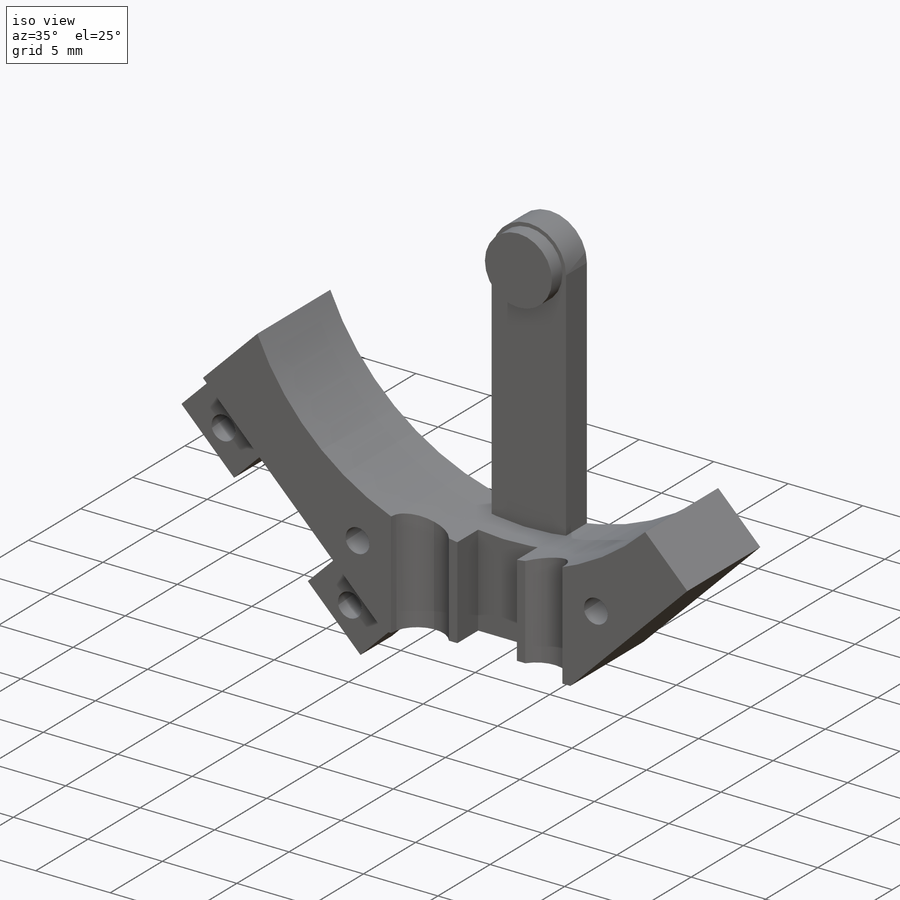
[diagram: iso view]
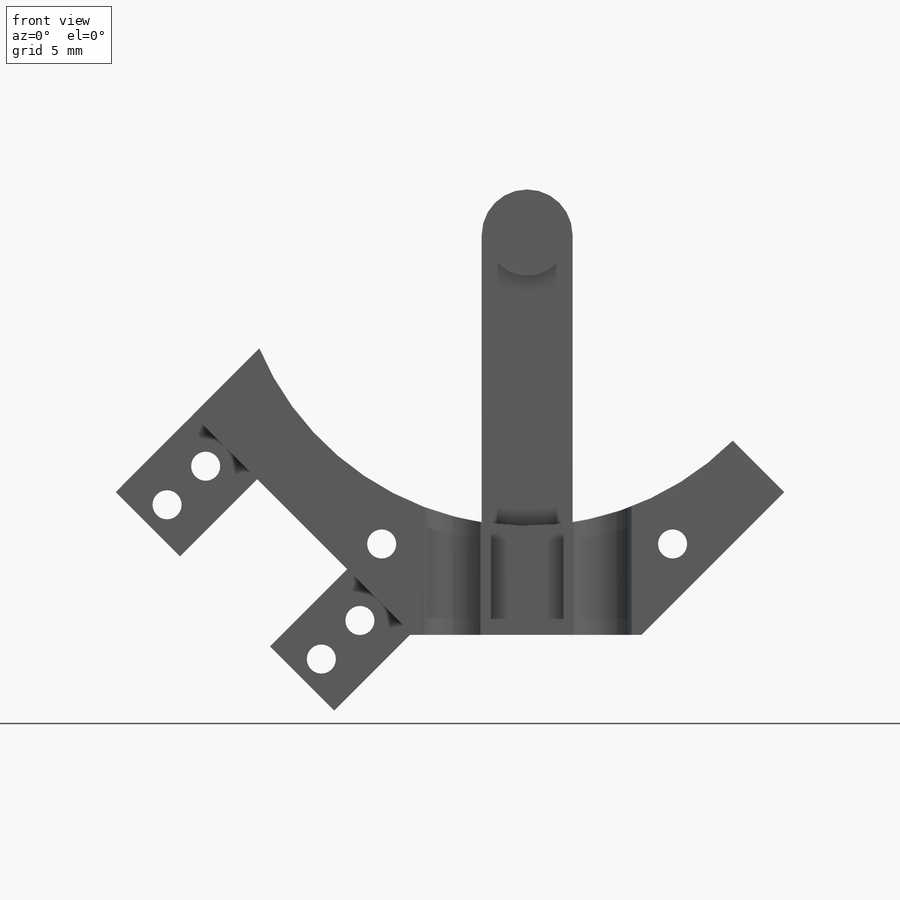
[diagram: front view]
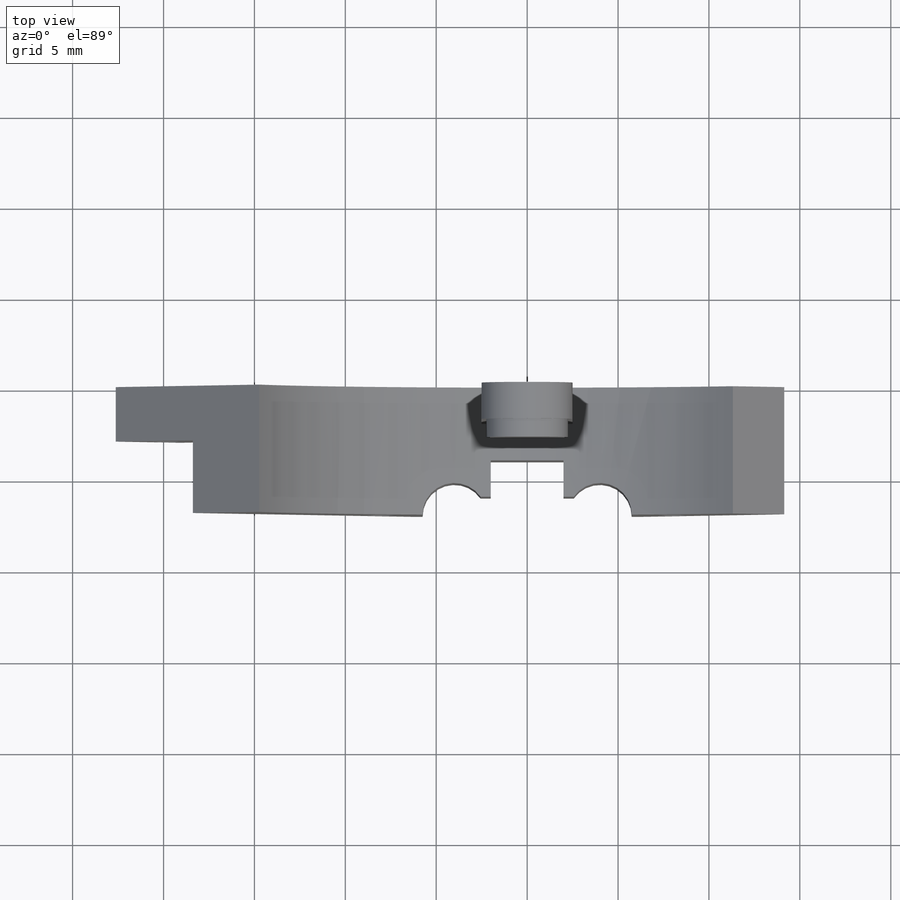
[diagram: top view]
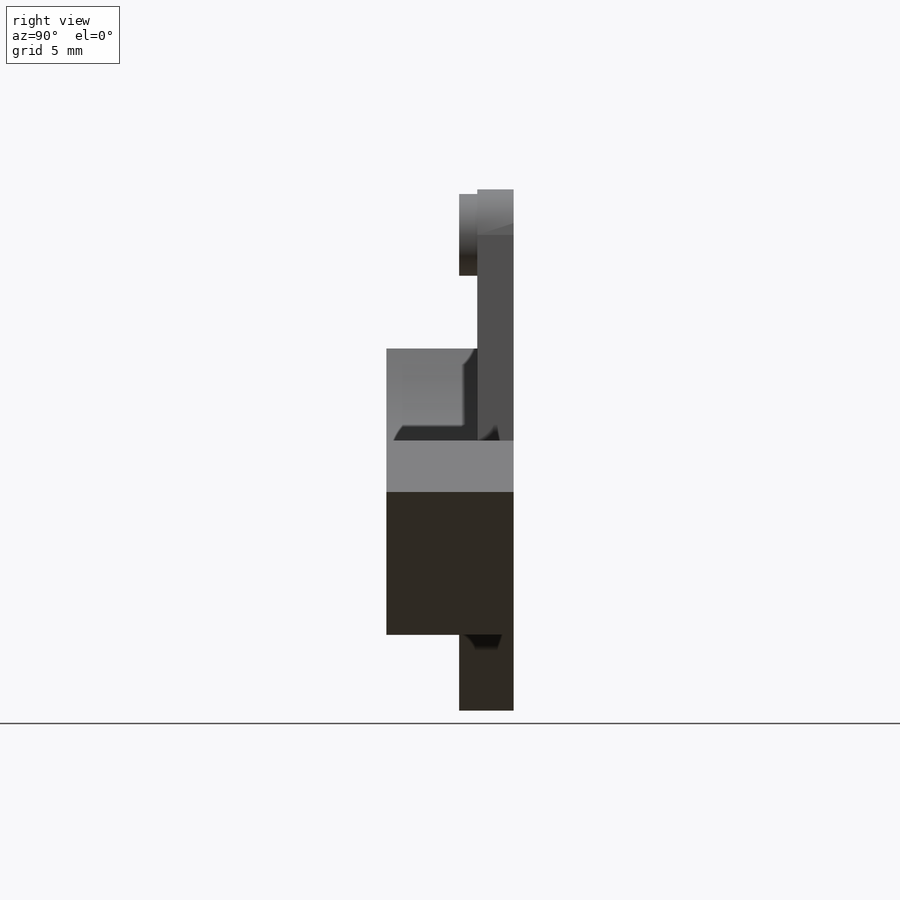
[diagram: right view]
SOLIDWORKS PART (.sldprt)
format: sldprt  version: not decoded by parser v0  size: 345,600 bytes
history: native  units: mm
features: sketch x7, cut_extrude x4, extrude x3, material x1 (+15 scaffold rows collapsed; 2 parser-record rows omitted)
feature tree (32):
  scaffold x15  (default folders/planes/origin — collapsed)
  material  "Material <not specified>"
  parser-record x2  (decoder bookkeeping rows leaked as tree rows — omitted from the tree; the rows remain in map.json)
  sketch  "Sketch1"  dims[c1.D1=~16.464466mm c2.D1=120.0deg c3.D1=~16.464466mm c4.D1=135.0deg c4.D2=~12.020815mm c5.D1=~11.167603mm]
  extrude  "Boss-Extrude1"  Depth=7mm
  sketch  "Sketch2"  dims[D1=22.0mm]
  extrude  "Boss-Extrude2"  Depth=2mm
  sketch  "Sketch3"  dims[D1=~1.111636mm]
  extrude  "Boss-Extrude3"  Depth=1mm
  sketch  "Sketch6"  dims[D1=4.0mm]
  cut_extrude  "Cable Tubes"  Depth=20mm
  sketch  "Sketch7"  dims[D1=4.0mm]
  cut_extrude  "Wire Canals"  Depth=8mm
  sketch  "Sketch4"  dims[c1.D1=3.0mm c2.D1=135.0deg c3.D1=~6.93403mm c4.D1=135.0deg c5.D1=~59.492812mm]
  cut_extrude  "Screw Holes"  [1 undecoded]
  sketch  "Sketch10"  dims[D1=5.0mm]
  cut_extrude  "Cut-Extrude2"  Depth=4mm
decode coverage: 13 of 14 modeling features carry decoded parameters
note: ~ marks probable driven/reference dimensions
note: 1 parameter value undecoded
note: suppression state not decoded; provenance and decode notes live in map.json
